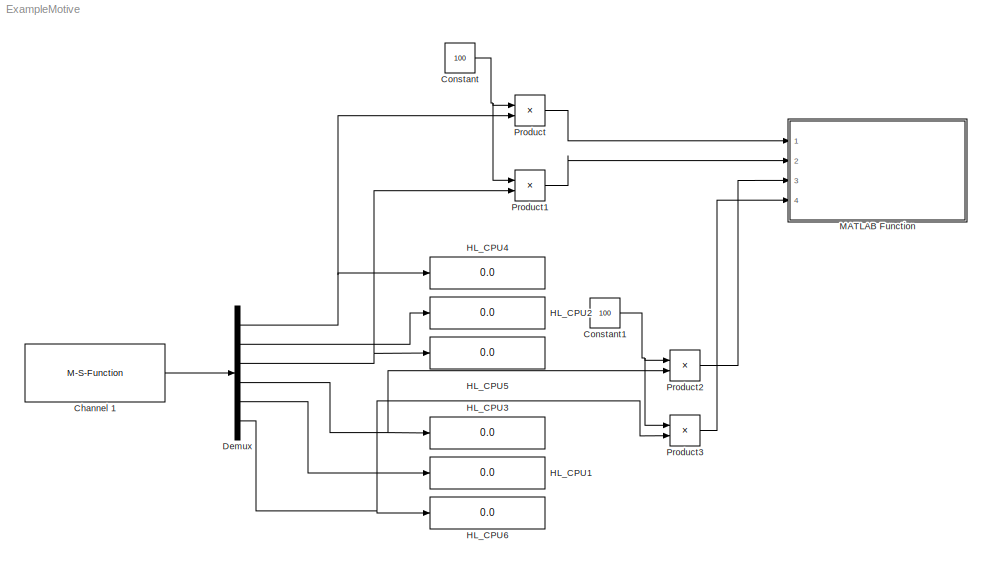
MODEL ExampleMotive
KIND model
CONFIG InitFcn = \n\nfig_h = figure;\nax_h = axes;\nset(ax_h,'Xlim',[-100 100],'YLim',[-100 100])\n\n
BLOCK [M-S-Function] Channel 1
  FunctionName = FuncMotive
  Parameters = 1
  Ports = [1, 1]
  SID = 1
BLOCK [Constant] Constant
  SID = 17
  Value = 100
BLOCK [Constant] Constant1
  SID = 21
  Value = 100
BLOCK [Demux] Demux
  DisplayOption = bar
  Outputs = 6
  Ports = [1, 6]
  SID = 6
BLOCK [Display] HL_CPU1
  Ports = [1]
  SID = 18
BLOCK [Display] HL_CPU2
  Ports = [1]
  SID = 7
BLOCK [Display] HL_CPU3
  Ports = [1]
  SID = 19
BLOCK [Display] HL_CPU4
  Ports = [1]
  SID = 8
BLOCK [Display] HL_CPU5
  Ports = [1]
  SID = 9
BLOCK [Display] HL_CPU6
  Ports = [1]
  SID = 20
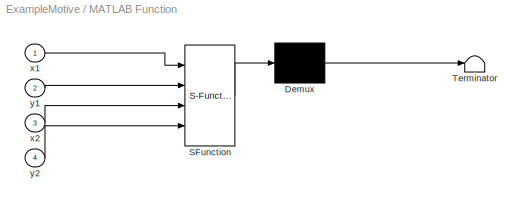
BLOCK [SubSystem] MATLAB Function
  ErrorFcn = Stateflow.Translate.translate
  PermitHierarchicalResolution = ExplicitOnly
  Ports = [4]
  RequestExecContextInheritance = off
  SFBlockType = MATLAB Function
  SID = 14
  TreatAsAtomicUnit = on
BLOCK [Demux] MATLAB Function/ Demux 
  Outputs = 1
  Ports = [1, 1]
  SID = 14::17
BLOCK [S-Function] MATLAB Function/ SFunction 
  EnableBusSupport = on
  FunctionName = sf_sfun
  PortCounts = [4 1]
  Ports = [4, 1]
  SID = 14::16
  Tag = Stateflow S-Function ExampleMotive 2
BLOCK [Terminator] MATLAB Function/ Terminator 
  SID = 14::18
BLOCK [Inport] MATLAB Function/x1
  IconDisplay = Port number
  SID = 14::1
BLOCK [Inport] MATLAB Function/x2
  IconDisplay = Port number
  Port = 3
  SID = 14::21
BLOCK [Inport] MATLAB Function/y1
  IconDisplay = Port number
  Port = 2
  SID = 14::19
BLOCK [Inport] MATLAB Function/y2
  IconDisplay = Port number
  Port = 4
  SID = 14::22
BLOCK [Product] Product
  InputSameDT = off
  OutDataTypeStr = Inherit: Inherit via internal rule
  Ports = [2, 1]
  RndMeth = Floor
  SID = 15
  SaturateOnIntegerOverflow = off
BLOCK [Product] Product1
  InputSameDT = off
  OutDataTypeStr = Inherit: Inherit via internal rule
  Ports = [2, 1]
  RndMeth = Floor
  SID = 16
  SaturateOnIntegerOverflow = off
BLOCK [Product] Product2
  InputSameDT = off
  OutDataTypeStr = Inherit: Inherit via internal rule
  Ports = [2, 1]
  RndMeth = Floor
  SID = 22
  SaturateOnIntegerOverflow = off
BLOCK [Product] Product3
  InputSameDT = off
  OutDataTypeStr = Inherit: Inherit via internal rule
  Ports = [2, 1]
  RndMeth = Floor
  SID = 23
  SaturateOnIntegerOverflow = off
LINE Channel 1:1 -> Demux:1
NET Constant1:1 -> Product2:1, Product3:1
NET Constant:1 -> Product1:1, Product:1
NET Demux:1 -> HL_CPU4:1, Product:2
LINE Demux:2 -> HL_CPU2:1
NET Demux:3 -> HL_CPU5:1, Product1:2
NET Demux:4 -> HL_CPU3:1, Product2:2
LINE Demux:5 -> HL_CPU1:1
NET Demux:6 -> HL_CPU6:1, Product3:2
LINE MATLAB Function/ Demux :1 -> MATLAB Function/ Terminator :1
LINE MATLAB Function/ SFunction :1 -> MATLAB Function/ Demux :1
LINE MATLAB Function/x1:1 -> MATLAB Function/ SFunction :1
LINE MATLAB Function/x2:1 -> MATLAB Function/ SFunction :3
LINE MATLAB Function/y1:1 -> MATLAB Function/ SFunction :2
LINE MATLAB Function/y2:1 -> MATLAB Function/ SFunction :4
LINE Product1:1 -> MATLAB Function:2
LINE Product2:1 -> MATLAB Function:3
LINE Product3:1 -> MATLAB Function:4
LINE Product:1 -> MATLAB Function:1
note: NET lines group one-source signal fan-out (src -> all destinations, sorted); 1:1 wires keep LINE
CHART MATLAB Function states=1 transitions=1
  STATE_LABEL 'eML_blk_kernel()'
